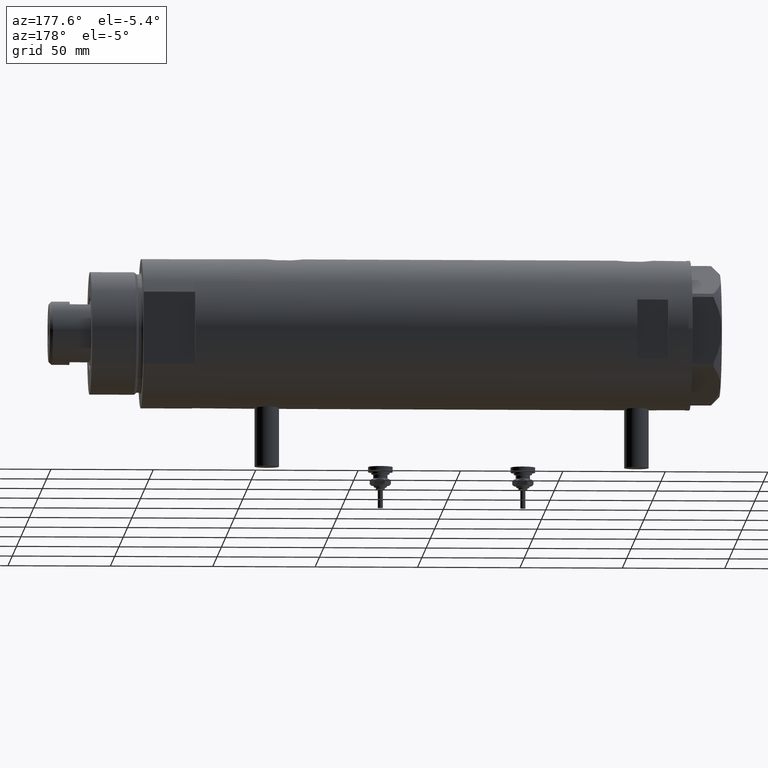
[diagram: clean part render]
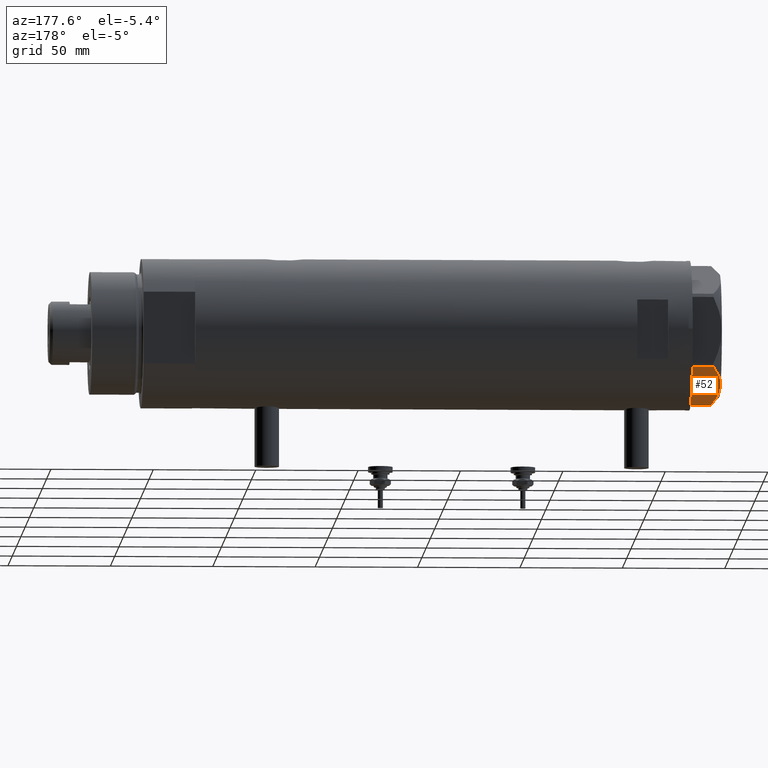
[diagram: same view with one face highlighted and labeled with its STEP entity id]
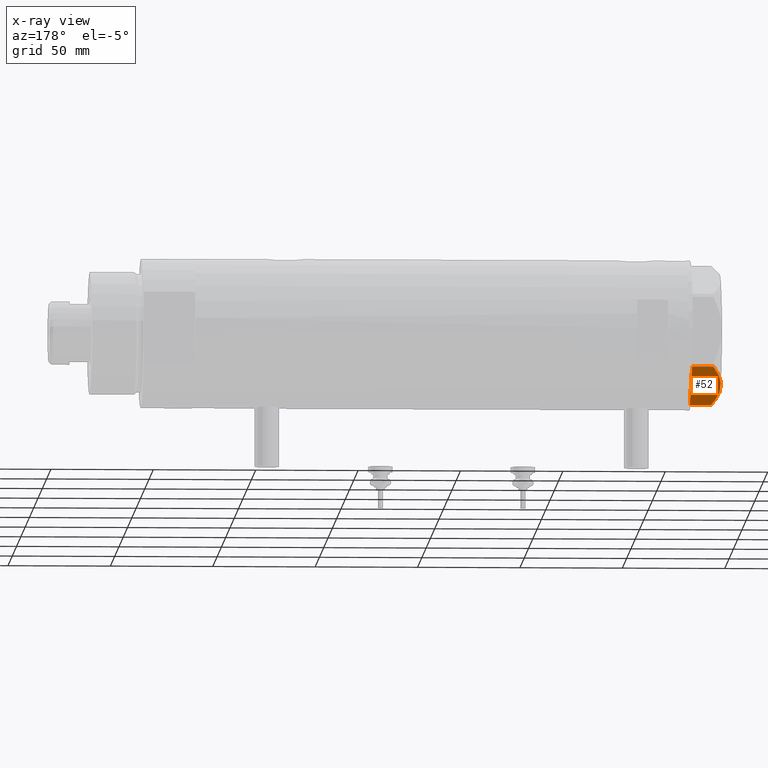
[diagram: x-ray of the same camera — body ghosted, the highlighted face saturated]
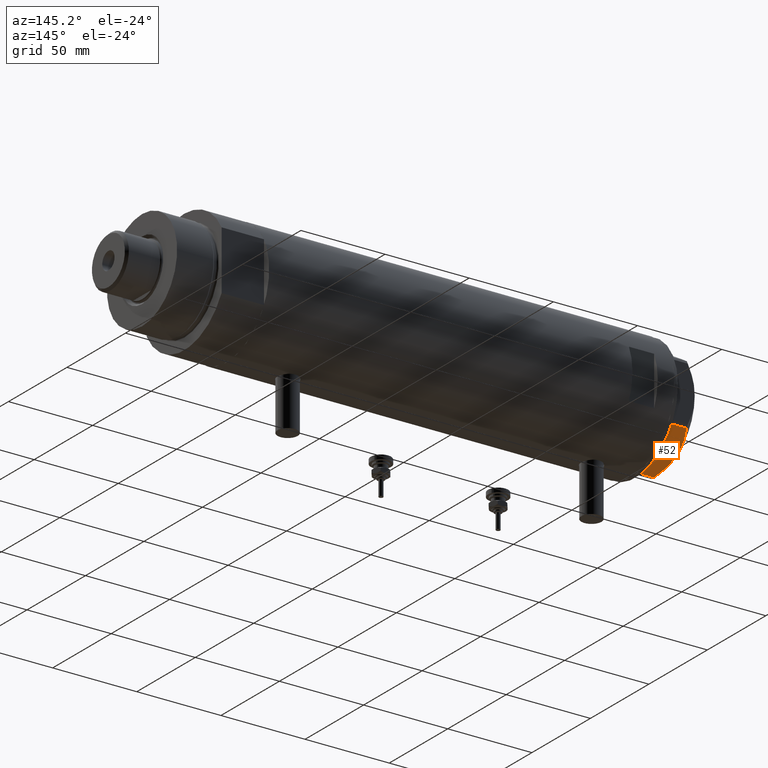
[diagram: same view with one face highlighted and labeled with its STEP entity id]
A machine part, auxiliary view. The second image highlights one B-rep face of the part: STEP entity #52.
The next image is the same camera in x-ray: the body ghosted, the highlighted face saturated — about 0% of this face is hidden behind the body in this view.
A second angle (auxiliary view) of the same face is appended — the face is thin or edge-on in the first view.
In plain terms, the highlighted planar face has unit normal (0, -0.5, 0.866).
Its self-contained STEP definition (entity closure, byte-faithful):
#52 = ADVANCED_FACE ( 'NONE', ( #579 ), #5106, .F. ) ;
#150 = EDGE_CURVE ( 'NONE', #5810, #2030, #1788, .T. ) ;
#197 = CARTESIAN_POINT ( 'NONE',  ( 29.03005154776139207, 17.88050807568879463, 0.000000000000000000 ) ) ;
#217 = CARTESIAN_POINT ( 'NONE',  ( 21.07077273125423034, 22.47579984295449407, 13.71922620632299505 ) ) ;
#221 = CARTESIAN_POINT ( 'NONE',  ( 14.99999999999999467, 25.98076211353316367, 14.50000000000000000 ) ) ;
#554 = CARTESIAN_POINT ( 'NONE',  ( 0.9699484522385712904, 34.08101615137753981, 14.50000000000000000 ) ) ;
#579 = FACE_OUTER_BOUND ( 'NONE', #5914, .T. ) ;
#655 = DIRECTION ( 'NONE',  ( 0.000000000000000000, 0.000000000000000000, -1.000000000000000000 ) ) ;
#665 = CARTESIAN_POINT ( 'NONE',  ( 26.82462797925471065, 19.15380996664327284, 11.61522964162834981 ) ) ;
#781 = VECTOR ( 'NONE', #3364, 1000.000000000000227 ) ;
#934 = VERTEX_POINT ( 'NONE', #2149 ) ;
#1004 = DIRECTION ( 'NONE',  ( -0.4999999999999998335, -0.8660254037844388186, 0.000000000000000000 ) ) ;
#1545 = CARTESIAN_POINT ( 'NONE',  ( 14.99999999999999467, 25.98076211353316367, 14.50000000000000000 ) ) ;
#1550 = CARTESIAN_POINT ( 'NONE',  ( 29.99999999999999289, 17.32050807568878170, 14.50000000000000000 ) ) ;
#1573 = CARTESIAN_POINT ( 'NONE',  ( 17.45962150578836258, 24.56069897506165489, 14.37423503257921986 ) ) ;
#1756 = CARTESIAN_POINT ( 'NONE',  ( 5.477433827014328571, 31.47861825688246640, 12.55468001512311105 ) ) ;
#1788 = B_SPLINE_CURVE_WITH_KNOTS ( 'NONE', 3,
 ( #2196, #4037, #5431, #2553, #4061, #1756, #5892, #1804, #3577, #2498 ),
 .UNSPECIFIED., .F., .F.,
 ( 4, 2, 2, 2, 4 ),
 ( 0.01795453117522811601, 0.02625795893839555362, 0.02833381587918740868, 0.03040967281997927762, 0.03456138670156298776 ),
 .UNSPECIFIED. ) ;
#1804 = CARTESIAN_POINT ( 'NONE',  ( 3.192653970408704023, 32.79773652213274460, 11.56973717813891156 ) ) ;
#1885 = CARTESIAN_POINT ( 'NONE',  ( 0.9699484522385712904, 34.08101615137753981, 0.000000000000000000 ) ) ;
#1954 = DIRECTION ( 'NONE',  ( 0.8660254037844387076, -0.4999999999999997780, 0.000000000000000000 ) ) ;
#2030 = VERTEX_POINT ( 'NONE', #3735 ) ;
#2045 = CARTESIAN_POINT ( 'NONE',  ( 16.22616138060133295, 25.27283751037305493, 14.47500996539161555 ) ) ;
#2149 = CARTESIAN_POINT ( 'NONE',  ( 29.03005154776155194, 17.88050807568870226, 10.40518423703596085 ) ) ;
#2196 = CARTESIAN_POINT ( 'NONE',  ( 14.99999999999999467, 25.98076211353316367, 14.50000000000000000 ) ) ;
#2387 = DIRECTION ( 'NONE',  ( 0.000000000000000000, 0.000000000000000000, 1.000000000000000000 ) ) ;
#2498 = CARTESIAN_POINT ( 'NONE',  ( 0.9699484522423541533, 34.08101615137535845, 10.40518423703812090 ) ) ;
#2518 = LINE ( 'NONE', #4336, #4675 ) ;
#2523 = CARTESIAN_POINT ( 'NONE',  ( 29.03005154776155194, 17.88050807568870226, 10.40518423703596085 ) ) ;
#2525 = ORIENTED_EDGE ( 'NONE', *, *, #5399, .T. ) ;
#2530 = LINE ( 'NONE', #4351, #781 ) ;
#2534 = EDGE_CURVE ( 'NONE', #3416, #2030, #4137, .T. ) ;
#2553 = CARTESIAN_POINT ( 'NONE',  ( 7.227334865373877371, 30.46831242133036355, 13.19311392138218508 ) ) ;
#2589 = VERTEX_POINT ( 'NONE', #197 ) ;
#2860 = VECTOR ( 'NONE', #2387, 1000.000000000000000 ) ;
#3179 = EDGE_CURVE ( 'NONE', #934, #5810, #3909, .T. ) ;
#3364 = DIRECTION ( 'NONE',  ( -0.8660254037844387076, 0.4999999999999997780, 0.000000000000000000 ) ) ;
#3414 = AXIS2_PLACEMENT_3D ( 'NONE', #1550, #1004, #1954 ) ;
#3416 = VERTEX_POINT ( 'NONE', #1885 ) ;
#3530 = EDGE_CURVE ( 'NONE', #934, #2589, #2518, .T. ) ;
#3577 = CARTESIAN_POINT ( 'NONE',  ( 2.073315687469442281, 33.44398678110199086, 11.01056656432865388 ) ) ;
#3707 = ORIENTED_EDGE ( 'NONE', *, *, #3179, .F. ) ;
#3735 = CARTESIAN_POINT ( 'NONE',  ( 0.9699484522423541533, 34.08101615137535845, 10.40518423703812090 ) ) ;
#3909 = B_SPLINE_CURVE_WITH_KNOTS ( 'NONE', 3,
 ( #2523, #665, #5650, #217, #4315, #5288, #1573, #2045, #5710, #1545 ),
 .UNSPECIFIED., .F., .F.,
 ( 4, 2, 2, 2, 4 ),
 ( 0.001230196178133409956, 0.009592363676680764825, 0.01377344742595444649, 0.01586398930059127951, 0.01795453117522811601 ),
 .UNSPECIFIED. ) ;
#4037 = CARTESIAN_POINT ( 'NONE',  ( 12.56968319190193029, 27.38390617690464879, 14.50000000000000711 ) ) ;
#4061 = CARTESIAN_POINT ( 'NONE',  ( 6.639151835535789026, 30.80790005194015535, 12.99122625442314671 ) ) ;
#4137 = LINE ( 'NONE', #554, #2860 ) ;
#4157 = ORIENTED_EDGE ( 'NONE', *, *, #3530, .T. ) ;
#4315 = CARTESIAN_POINT ( 'NONE',  ( 19.88494945387372681, 23.16043523136144699, 14.00566141361760941 ) ) ;
#4336 = CARTESIAN_POINT ( 'NONE',  ( 29.03005154776139207, 17.88050807568879463, 14.50000000000000000 ) ) ;
#4351 = CARTESIAN_POINT ( 'NONE',  ( 29.99999999999999289, 17.32050807568878170, 0.000000000000000000 ) ) ;
#4557 = ORIENTED_EDGE ( 'NONE', *, *, #2534, .T. ) ;
#4675 = VECTOR ( 'NONE', #655, 1000.000000000000000 ) ;
#4944 = ORIENTED_EDGE ( 'NONE', *, *, #150, .F. ) ;
#5106 = PLANE ( 'NONE',  #3414 ) ;
#5288 = CARTESIAN_POINT ( 'NONE',  ( 18.07068105770096267, 24.20790357827400996, 14.29910535634586743 ) ) ;
#5399 = EDGE_CURVE ( 'NONE', #2589, #3416, #2530, .T. ) ;
#5431 = CARTESIAN_POINT ( 'NONE',  ( 10.17780078270602040, 28.76486012972386064, 14.10092492974158773 ) ) ;
#5650 = CARTESIAN_POINT ( 'NONE',  ( 24.56959650245796567, 20.45575299680294634, 12.63511531451932690 ) ) ;
#5710 = CARTESIAN_POINT ( 'NONE',  ( 15.61187731150015878, 25.62749458302751293, 14.50000000000000355 ) ) ;
#5810 = VERTEX_POINT ( 'NONE', #221 ) ;
#5892 = CARTESIAN_POINT ( 'NONE',  ( 4.902385341345770975, 31.81062265488028018, 12.31959434659136576 ) ) ;
#5914 = EDGE_LOOP ( 'NONE', ( #3707, #4157, #2525, #4557, #4944 ) ) ;